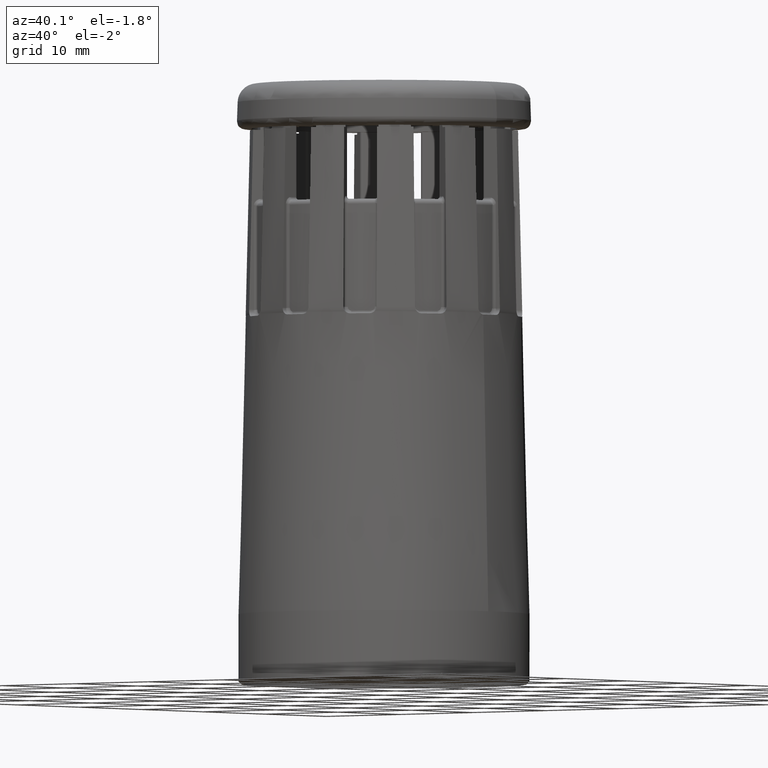
[diagram: clean part render]
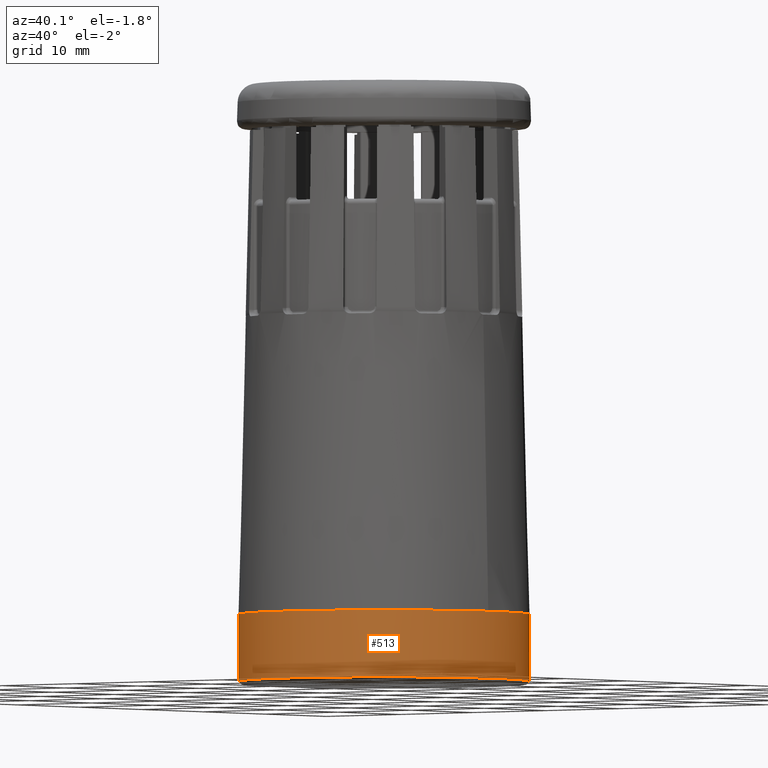
[diagram: same view with one face highlighted and labeled with its STEP entity id]
A machine part, auxiliary view. The second image highlights one B-rep face of the part: STEP entity #513.
In plain terms, the highlighted cylindrical surface (partial cylindrical patch) has radius 15.2 mm, axis along (-0, 0, -1).
Its self-contained STEP definition (entity closure, byte-faithful):
#513=ADVANCED_FACE('',(#1055),#840,.T.);
#840=CYLINDRICAL_SURFACE('',#7383,15.2);
#1055=FACE_OUTER_BOUND('',#1431,.T.);
#1431=EDGE_LOOP('',(#3070,#3071,#3072,#3073));
#1824=CIRCLE('',#7379,15.2);
#1826=CIRCLE('',#7382,15.2);
#3070=ORIENTED_EDGE('',*,*,#5908,.T.);
#3071=ORIENTED_EDGE('',*,*,#5904,.F.);
#3072=ORIENTED_EDGE('',*,*,#5909,.T.);
#3073=ORIENTED_EDGE('',*,*,#5910,.T.);
#5062=VERTEX_POINT('',#11664);
#5063=VERTEX_POINT('',#11665);
#5066=VERTEX_POINT('',#11677);
#5067=VERTEX_POINT('',#11679);
#5904=EDGE_CURVE('',#5062,#5063,#1824,.T.);
#5908=EDGE_CURVE('',#5066,#5063,#6740,.T.);
#5909=EDGE_CURVE('',#5062,#5067,#6741,.T.);
#5910=EDGE_CURVE('',#5067,#5066,#1826,.T.);
#6740=LINE('',#11676,#7062);
#6741=LINE('',#11678,#7063);
#7062=VECTOR('',#8468,1.);
#7063=VECTOR('',#8469,1.);
#7379=AXIS2_PLACEMENT_3D('',#11663,#8462,#8463);
#7382=AXIS2_PLACEMENT_3D('',#11680,#8470,#8471);
#7383=AXIS2_PLACEMENT_3D('',#11681,#8472,#8473);
#8462=DIRECTION('',(0.,0.,-1.));
#8463=DIRECTION('',(1.,0.,0.));
#8468=DIRECTION('',(0.,0.,-1.));
#8469=DIRECTION('',(0.,0.,1.));
#8470=DIRECTION('',(0.,0.,-1.));
#8471=DIRECTION('',(1.,0.,0.));
#8472=DIRECTION('',(-2.449213E-16,0.,-1.));
#8473=DIRECTION('',(1.,0.,-2.28253088944317E-16));
#11663=CARTESIAN_POINT('',(-1.32374207887894E-14,-1.2490009027033E-13,-13.7));
#11664=CARTESIAN_POINT('',(0.115724398101645,15.199559462816,-13.7));
#11665=CARTESIAN_POINT('',(-0.115724398097558,15.199559462816,-13.7));
#11676=CARTESIAN_POINT('',(-0.115724398097556,15.199559462816,-6.71151230039293));
#11677=CARTESIAN_POINT('',(-0.115724398097556,15.199559462816,-6.71151230039293));
#11678=CARTESIAN_POINT('',(0.115724398101645,15.199559462816,-13.7));
#11679=CARTESIAN_POINT('',(0.115724398101647,15.199559462816,-6.71151230039299));
#11680=CARTESIAN_POINT('',(-1.1526420788789E-14,-1.2490009027033E-13,-6.71151230039298));
#11681=CARTESIAN_POINT('',(-1.23824207887895E-14,-1.2490009027033E-13,-10.2057561501965));